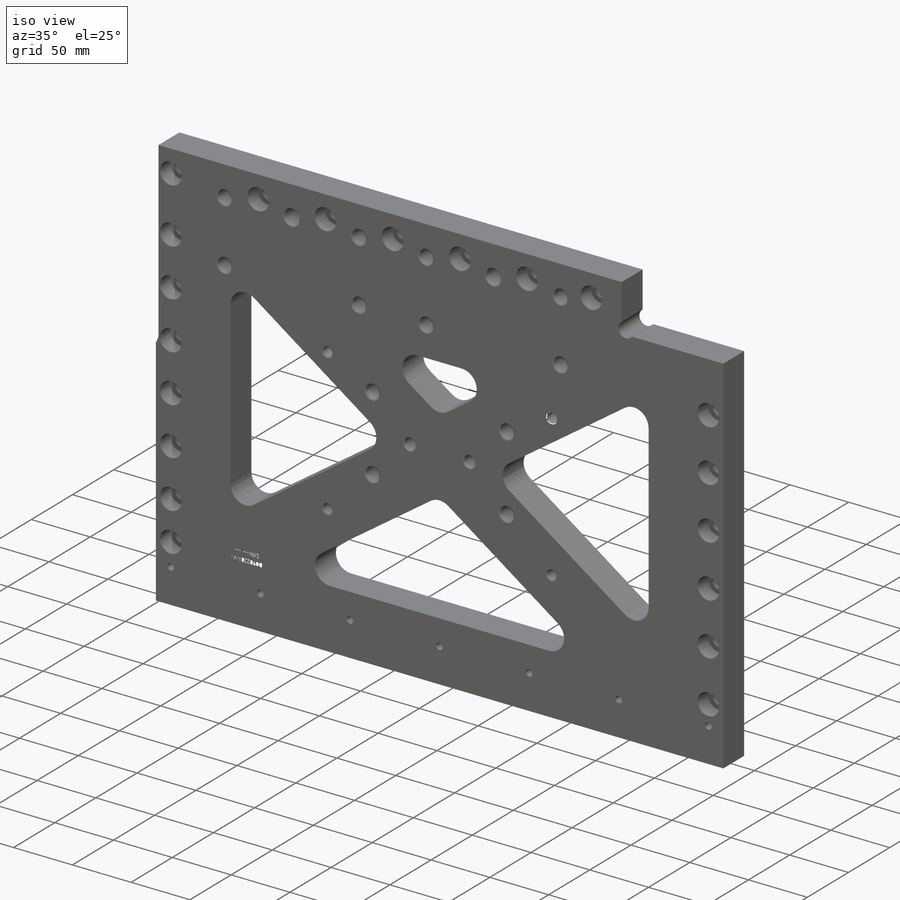
[diagram: iso view]
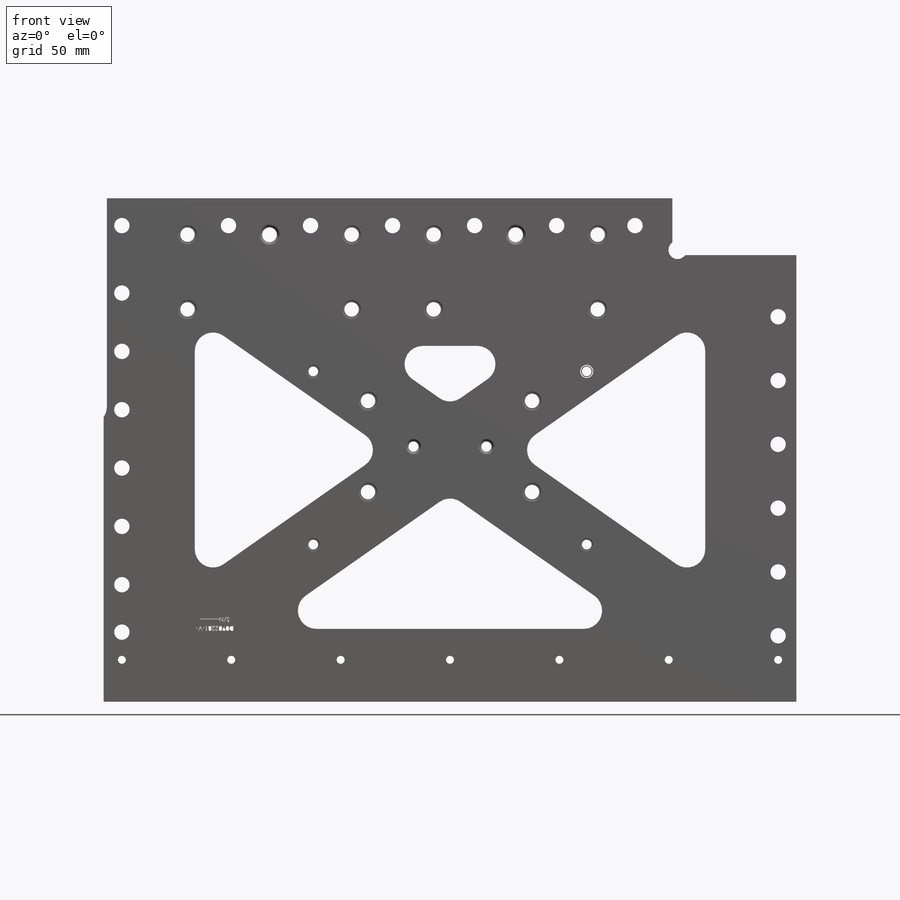
[diagram: front view]
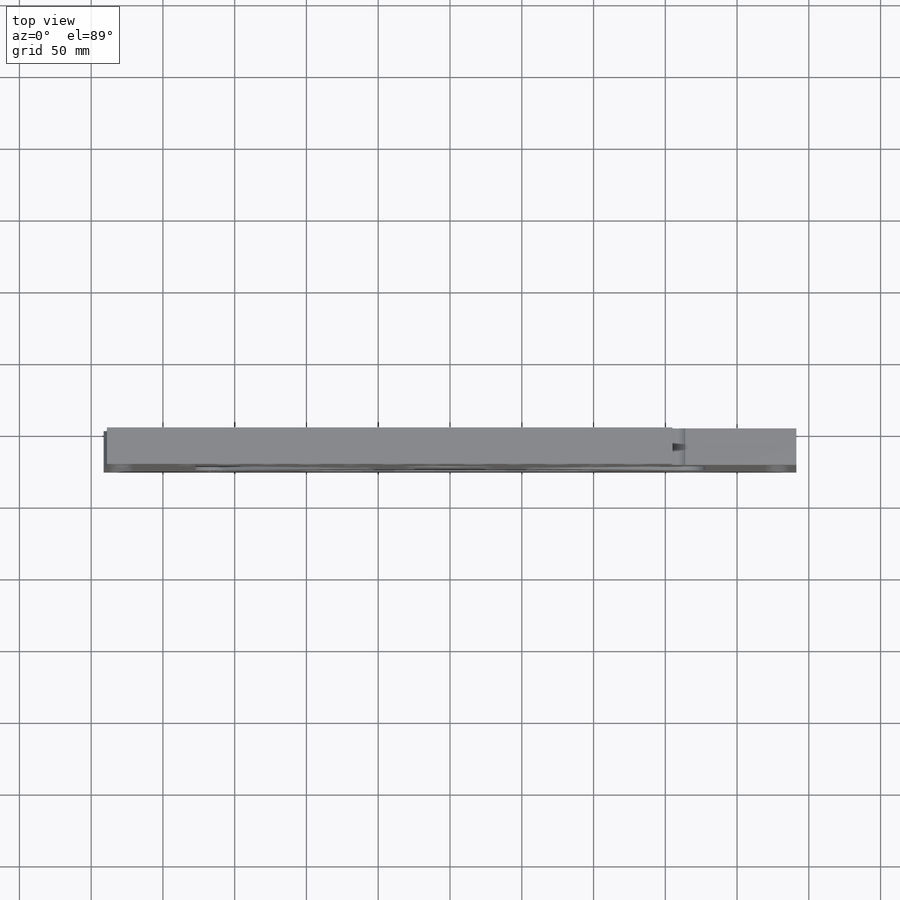
[diagram: top view]
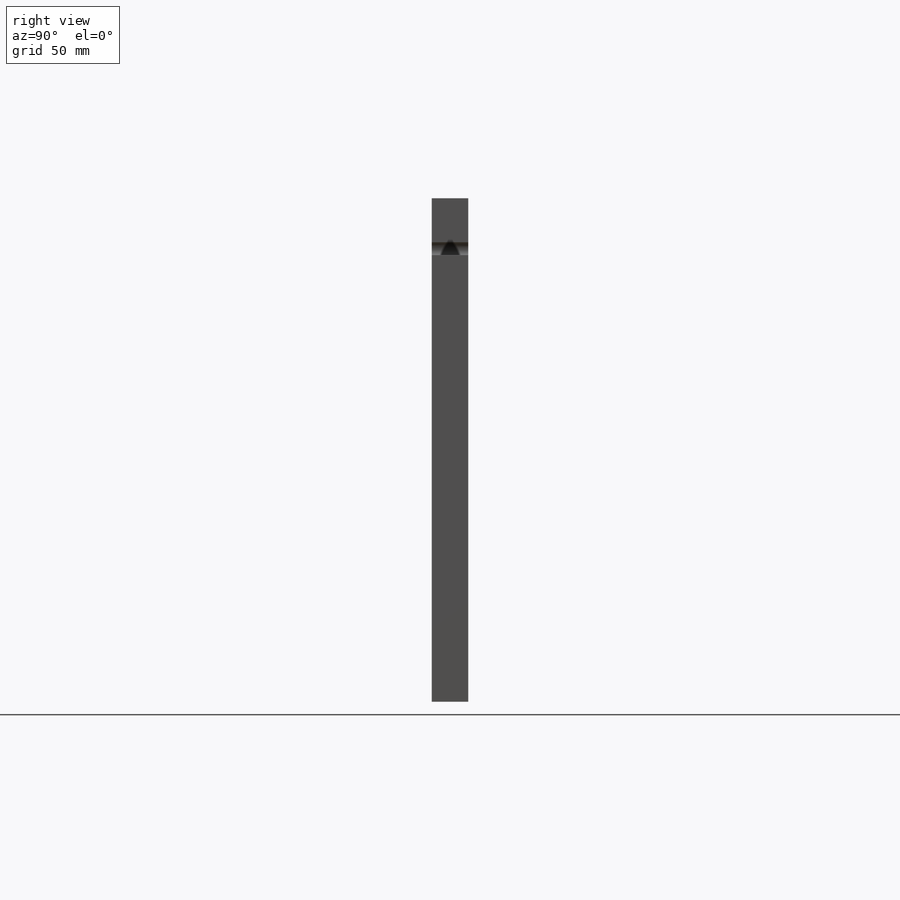
[diagram: right view]
SOLIDWORKS PART (.sldprt)
format: sldprt  version: not decoded by parser v0  size: 1,475,584 bytes
history: native  units: mm
features: sketch x32, hole x12, cut_extrude x6, plane x4, extrude x2, fillet x2, material x1, pattern_linear x1 (+11 scaffold rows collapsed)
feature tree (71):
  scaffold x11  (default folders/planes/origin — collapsed)
  material  "6061-T6 Al"
  plane  "XY"
  plane  "XZ"
  plane  "YZ"
  sketch  "Sketch1"  dims[D1=482.6mm D2=350.774mm]
  extrude  "Main extrusion"  Depth=25.4mm
  sketch  "Sketch2"  dims[D7=12.7mm D8=12.7mm D1=50.8mm D2=63.5mm D3=50.8mm D4=63.5mm D5=50.8mm D6=50.8mm]
  cut_extrude  "Doors cuts"  [1 undecoded]
  sketch  "Sketch3"  dims[D1=85.979mm D2=39.624mm]
  cut_extrude  "Cut for base plate"  Depth=-1 ID=-1
  sketch  "Sketch22"  dims[D1=0.381mm]
  cut_extrude  "2nd Cut for Base Plate"  [1 undecoded]
  sketch  "Sketch4"  dims[c1.D1=12.7mm c1.D2=7.62mm c2.D2=45.0deg]
  cut_extrude  "Cut corner for base plate"  [1 undecoded]
  plane  "Plane1"
  hole  "Tapped Hole for 3/8-16 Helicoil1"  Diameter=10.0838mm Depth=25.4mm
  sketch  "Sketch26"  dims[c1.D1=28.575mm c1.D2=28.575mm c1.D3=25.4mm c1.D4=23.368mm c1.D5=142.875mm c1.D6=142.875mm c2.D1=58.42mm c2.D2=114.3mm c2.D4=171.45mm c2.D5=285.75mm]
  sketch  "Sketch25"  dims[hole-wizard template sketch: 42 standard entries collapsed; hole parameters kept: c12.Thru Tap Drill Depth=25.4mm c12.Thread Major Dia.=~11.68908mm c12.Thread Depth=22.86mm c12.Near C'Sink Dia.=13.208mm c12.D6=~4.399409mm c12.Near C'Sink Angle=120.0deg]
  hole  "CBORE for 1/2 Socket Head Cap Screw4"  Diameter=12.7mm Depth=18.796mm
  sketch  "Sketch28"  dims[c1.D1=28.575mm c1.D2=28.575mm c1.D3=25.4mm c2.D1=57.15mm c2.D2=171.45mm c3.D1=57.15mm]
  sketch  "Sketch27"  dims[hole-wizard template sketch: 26 standard entries collapsed; hole parameters kept: c8.Hole Dia.=12.7mm c8.Hole Depth=18.796mm c8.C'Bore Dia.=12.7508mm c8.C'Bore Depth=3.81mm c8.Near C'Sink Dia.=13.97mm c8.D6=~4.399409mm c8.Near C'Sink Angle=90.0deg c8.D7=~14.816244mm c8.Drill Angle=90.0deg]
  hole  "13/32 (0.40625) Diameter Hole1"  Diameter=10.31875mm Depth=25.4mm
  sketch  "Sketch51"
  sketch  "Sketch50"  dims[hole-wizard template sketch: 60 standard entries collapsed; hole parameters kept: c18.Thru Hole Depth=25.4mm]
  hole  "Top Holes  Tapped Hole for 3/8-16 Helicoil2"  Diameter=10.0838mm Depth=33.02mm
  sketch  "Sketch40"  dims[D1=12.7mm D2=76.2mm D3=152.4mm D4=228.6mm D5=304.8mm D6=381.0mm D7=457.2mm]
  sketch  "Sketch39"  dims[hole-wizard template sketch: 27 standard entries collapsed; hole parameters kept: c8.Tap Drill Depth=33.02mm c8.Thread Major Dia.=~11.68908mm c8.Thread Depth=22.86mm c8.Near C'Sink Dia.=13.208mm c8.D6=~4.399409mm c8.Near C'Sink Angle=120.0deg c8.D7=~14.816244mm c8.Drill Angle=120.0deg]
  hole  "7/32 (0.21875) Diameter Vented Hole"  Diameter=5.55625mm Depth=25.4mm
  sketch  "Sketch48"  dims[D1=29.21mm D2=12.7mm D3=76.2mm D4=152.4mm D5=228.6mm D6=304.8mm D7=381.0mm D8=457.2mm]
  sketch  "Sketch47"  dims[hole-wizard template sketch: 61 standard entries collapsed; hole parameters above]
  hole  "Left Holes CBORE for 3/8 Socket Head Cap Screw2"  Diameter=10.7188mm Depth=25.4mm
  sketch  "Sketch42"  dims[c1.D1=12.7mm c1.D2=44.45mm c2.D1=12.7mm c2.D2=82.55mm c2.D3=127.0mm c2.D4=171.45mm c2.D5=215.9mm c2.D6=260.35mm c2.D7=304.8mm]
  sketch  "Sketch41"  dims[hole-wizard template sketch: 41 standard entries collapsed; hole parameters kept: c12.Thru Hole Dia.=10.7188mm c12.Thru Hole Depth=25.4mm c12.C'Bore Dia.=18.2626mm c12.C'Bore Depth=12.7mm c12.Far C'Sink Dia.=11.43mm c12.D6=~2.963249mm c12.Far C'Sink Angle=82.0deg]
  sketch  "Sketch31"  dims[D1=52.07mm]
  extrude  "Fill Botton Lightening hole"  [1 undecoded]
  fillet  "Fillet Bottom Lightening hole"  Radius=12.7mm
  pattern_linear  "LPattern1"  Count1=2 Count2=1 Spacing1=52.07mm Spacing2=2.54mm
  hole  "CBORE for 3/8 DOWEL PIN"  Diameter=9.525mm Depth=15.24mm
  sketch  "Sketch33"  dims[D1=177.8mm D2=215.9mm D3=50.8mm D4=177.8mm]
  sketch  "Sketch32"  dims[hole-wizard template sketch: 28 standard entries collapsed; hole parameters kept: c8.C'Bore Dia.=~9.54278mm c8.C'Bore Depth=3.81mm c8.Near C'Sink Dia.=10.668mm c8.D6=~4.399409mm c8.Near C'Sink Angle=90.0deg c8.D7=~14.816244mm c8.Drill Angle=90.0deg]
  hole  "Tapped Hole for 3/8-16 Helicoil2"  Diameter=10.0838mm Depth=25.4mm
  sketch  "Sketch35"  dims[c1.D3=9.525mm c1.D4=9.525mm c1.D1=114.3mm c1.D2=63.5mm c2.D3=31.75mm c2.D4=31.75mm c3.D3=31.75mm c3.D5=31.75mm c3.D4=31.75mm]
  sketch  "Sketch34"  dims[hole-wizard template sketch: 42 standard entries collapsed; hole parameters kept: c12.Thru Tap Drill Depth=25.4mm c12.Thread Major Dia.=~11.68908mm c12.Thread Depth=22.86mm c12.Near C'Sink Dia.=13.208mm c12.D6=~4.399409mm c12.Near C'Sink Angle=120.0deg]
  hole  "L4C wall CBORE for 3/8 Socket Head Cap Screw1"  Diameter=10.7188mm Depth=25.4mm
  sketch  "Sketch44"  dims[c1.D1=12.7mm c1.D2=19.05mm c1.D3=66.04mm c1.D4=106.68mm c1.D5=147.32mm c1.D6=187.96mm c1.D7=228.6mm c1.D8=269.24mm c1.D9=302.26mm c2.D1=12.7mm]
  sketch  "Sketch43"  dims[hole-wizard template sketch: 41 standard entries collapsed; hole parameters kept: c12.Thru Hole Dia.=10.7188mm c12.Thru Hole Depth=25.4mm c12.C'Bore Dia.=18.2626mm c12.C'Bore Depth=12.7mm c12.Far C'Sink Dia.=11.43mm c12.D6=~2.963249mm c12.Far C'Sink Angle=82.0deg]
  hole  "Base plate CBORE for 3/8 Socket Head Cap Screw1"  Diameter=10.7188mm Depth=25.4mm
  sketch  "Sketch46"  dims[D1=19.05mm D2=86.995mm D3=144.145mm D4=201.295mm D5=258.445mm D6=315.595mm D7=370.205mm]
  sketch  "Sketch45"  dims[hole-wizard template sketch: 41 standard entries collapsed; hole parameters kept: c12.Thru Hole Dia.=10.7188mm c12.Thru Hole Depth=25.4mm c12.C'Bore Dia.=18.2626mm c12.C'Bore Depth=12.7mm c12.Far C'Sink Dia.=11.684mm c12.D6=~2.963249mm c12.Far C'Sink Angle=82.0deg]
  sketch  "Sketch49"  dims[D1=2.286mm D2=152.4mm]
  cut_extrude  "Extrude1"  [1 undecoded]
  hole  "9/32 (0.28125) Diameter Hole1"  Diameter=7.14375mm Depth=25.4mm
  sketch  "Sketch53"
  sketch  "Sketch52"  dims[hole-wizard template sketch: 60 standard entries collapsed; hole parameters kept: c18.Thru Hole Depth=25.4mm]
  fillet  "Fillet1"  Radius=12.7mm
  hole  "Tapped Hole for 1/4-20 Helicoil1"  Diameter=6.7564mm Depth=25.4mm
  sketch  "Sketch55"  dims[D1=146.05mm D2=241.3mm D3=120.65mm D4=146.05mm]
  sketch  "Sketch54"  dims[hole-wizard template sketch: 44 standard entries collapsed; hole parameters kept: c12.Thread Depth=15.748mm c12.Near C'Sink Dia.=9.144mm c12.D6=~4.399409mm c12.Near C'Sink Angle=120.0deg]
  sketch  "Sketch56"
  cut_extrude  "Cut-Extrude1"  Depth=0.0254mm
decode coverage: 47 of 55 modeling features carry decoded parameters
note: ~ marks probable driven/reference dimensions
note: 5 parameter values undecoded
summary: Diameter pulled from absorbed wizard sketch | no parameter record found for 5 features
note: suppression state not decoded; provenance and decode notes live in map.json
